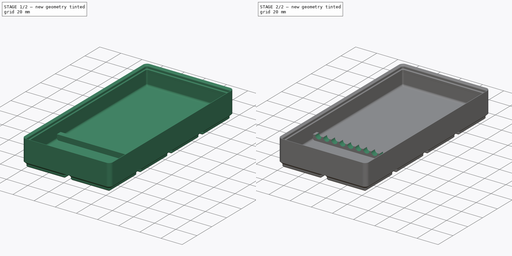
[diagram: build sequence overview — one tinted view per stage of 2, left to right]
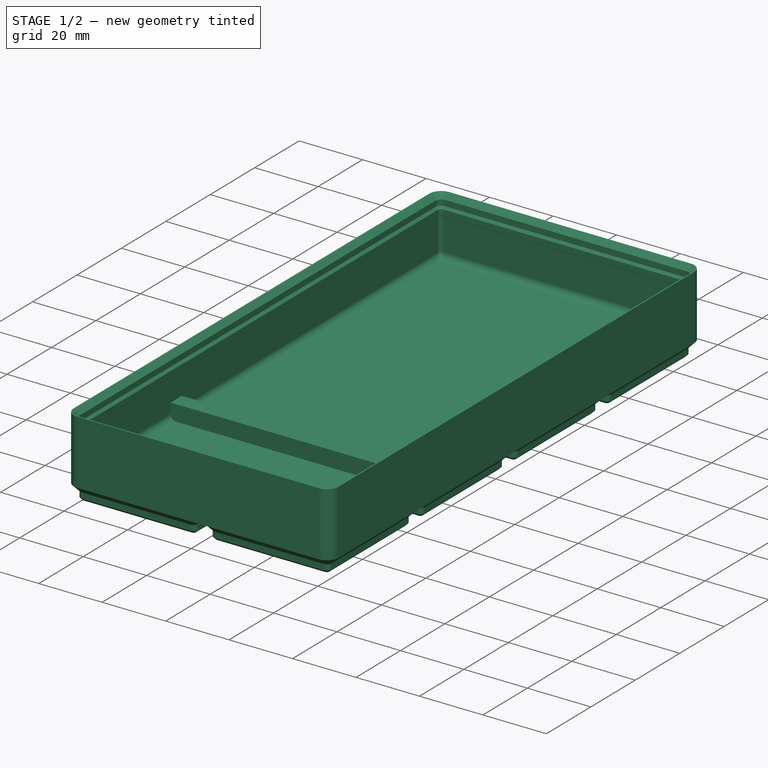
[diagram: stage 1 of 2 — iso view after this stage's code; geometry added in this stage tinted green]
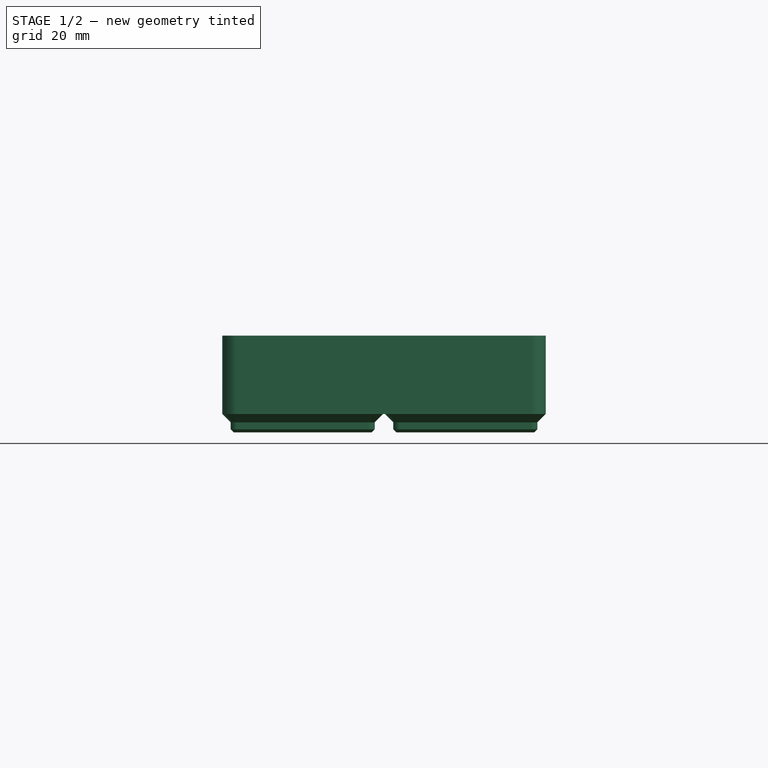
[diagram: stage 1 of 2 — front view after this stage's code; geometry added in this stage tinted green]
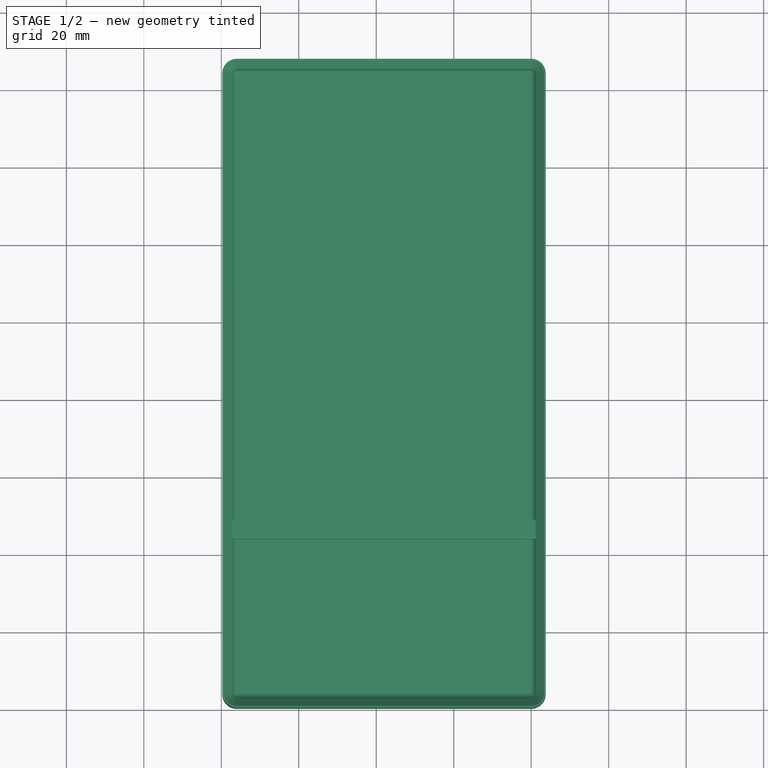
[diagram: stage 1 of 2 — top view after this stage's code; geometry added in this stage tinted green]
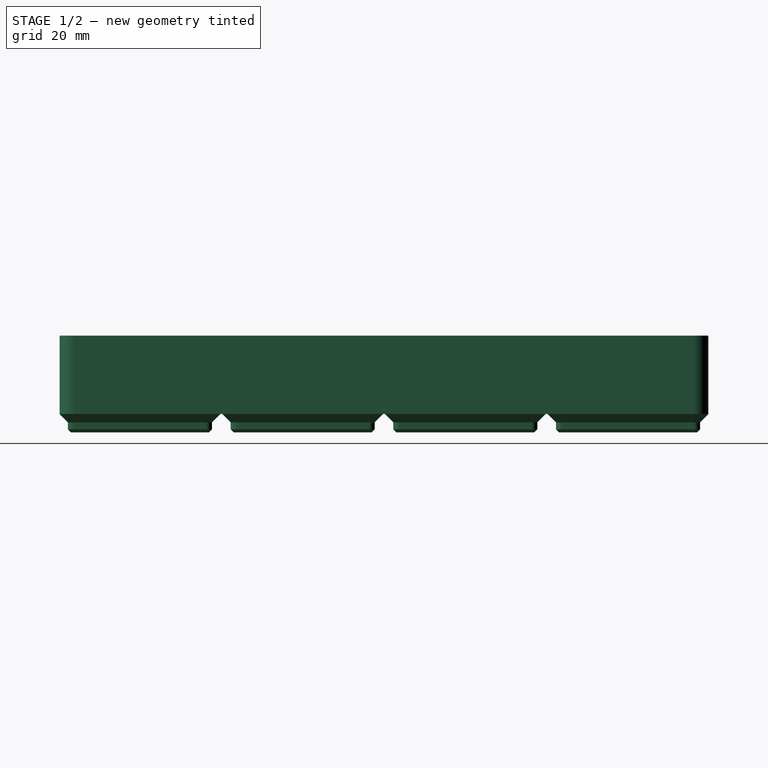
[diagram: stage 1 of 2 — right view after this stage's code; geometry added in this stage tinted green]
FCSTD DOCUMENT  (FreeCAD 1.0R39319 (Git))
Label: Gridfinity_BrushBox_2x4x3
License: All rights reserved
LicenseURL: https://en.wikipedia.org/wiki/All_rights_reserved
objects: Sketcher::SketchObject×2, PartDesign::FeaturePython×1, PartDesign::Pad×1, PartDesign::Pocket×1, PartDesign::LinearPattern×1, PartDesign::Body×1
note: 15 computed .brp shape members not serialized (recipe doc carries the construction recipe); baked Part::Feature solids carry a one-line shape summary decoded from their .brp

FEATURE [PartDesign::FeaturePython] SimpleStorageBin  # WARN: FeaturePython — macro-defined, semantics opaque (R4)
  BaseProfileBottomChamfer = 0.8
  BaseProfileHeight = 4.75
  BaseProfileTopChamfer = 2.15
  BaseProfileVerticalSection = 1.8
  Baseplate = false
  BinBottomRadius = 0.8
  BinOuterRadius = 3.75
  BinVerticalRadius = 1.6
  Clearance = 0.25
  CustomHeight = 42
  DividerThickness = 1.2
  GenerationLocation = 0
  HeightUnitValue = 7
  HeightUnits = 3
  InsideFilletRadius = 1.85
  LabelShelfAngle = 45
  LabelShelfLength = 42
  LabelShelfPlacement = 0
  LabelShelfStackingOffset = 0.4
  LabelShelfStyle = 0
  LabelShelfVerticalThickness = 1.2
  LabelShelfWidth = 12
  MagnetHoleDepth = 2.4
  MagnetHoleDiameter = 6.2
  MagnetHoleDistanceFromEdge = 8
  MagnetHoles = true
  MagnetHolesShape = 0
  NonStandardHeight = false
  Scoop = false
  ScoopRadius = 21
  ScrewHoleDepth = 6
  ScrewHoleDiameter = 3
  ScrewHoles = false
  SequentialBridgingLayerHeight = 0.2
  StackingLip = true
  StackingLipBottomChamfer = 0.7
  StackingLipTopChamfer = 1.5
  StackingLipTopLedge = 0.4
  StackingLipVerticalSection = 1.8
  Suppressed = false
  TotalHeight = 21
  UsableHeight = 14
  WallThickness = 2.5
  version = 0.11.9
  xDividerHeight = 0
  xDividers = 0
  xGridSize = 42
  xGridUnits = 2
  xLocationOffset = 0
  xTotalWidth = 83.5
  yDividerHeight = 0
  yDividers = 0
  yGridSize = 42
  yGridUnits = 4
  yLocationOffset = 0
  yTotalWidth = 167.5
  expr: BaseProfileHeight = BaseProfileBottomChamfer + BaseProfileVerticalSection + BaseProfileTopChamfer
  expr: TotalHeight = NonStandardHeight == 1 ? CustomHeight : HeightUnits * HeightUnitValue
  expr: xTotalWidth = xGridUnits * xGridSize - (Baseplate == 1 ? 0 mm : 2 * Clearance)
  expr: yTotalWidth = yGridUnits * yGridSize - (Baseplate == 1 ? 0 mm : 2 * Clearance)
FEATURE [Sketcher::SketchObject] Sketch
  ArcFitTolerance = 1e-06
  AttachmentSupport = -> [SimpleStorageBin]
  ExternalGeometry = -> [SimpleStorageBin]
  FullyConstrained = true
  MakeInternals = false
  MapMode = 5
  Placement = pos=(0,0,-14) rot=(0,0,1;0rad)
  sketch-geometry (4):
    g0: LineSegment StartX=2.15 StartY=49 StartZ=0 EndX=2.15 EndY=44 EndZ=0
    g1: LineSegment StartX=2.15 StartY=44 StartZ=0 EndX=81.85 EndY=44 EndZ=0
    g2: LineSegment StartX=81.85 StartY=44 StartZ=0 EndX=81.85 EndY=49 EndZ=0
    g3: LineSegment StartX=81.85 StartY=49 StartZ=0 EndX=2.15 EndY=49 EndZ=0
  constraints (12):
    c: Coincident(g0,g1)
    c: Coincident(g1,g2)
    c: Coincident(g2,g3)
    c: Coincident(g3,g0)
    c: Vertical(g0)
    c: Vertical(g2)
    c: Horizontal(g1)
    c: Horizontal(g3)
    c: PointOnObject(g0,g-4)
    c: PointOnObject(g2,g-3)
    c: DistanceY(g0,g0) = 5
    c: DistanceY(g-4,g0) = 40
FEATURE [PartDesign::Pad] Pad
  BaseFeature = -> SimpleStorageBin
  Direction = (0,0,1)
  Length = 5
  Length2 = 10
  Profile = -> Sketch
  ReferenceAxis = -> Sketch [N_Axis]
  Refine = true
  Suppressed = false
  Type = 0
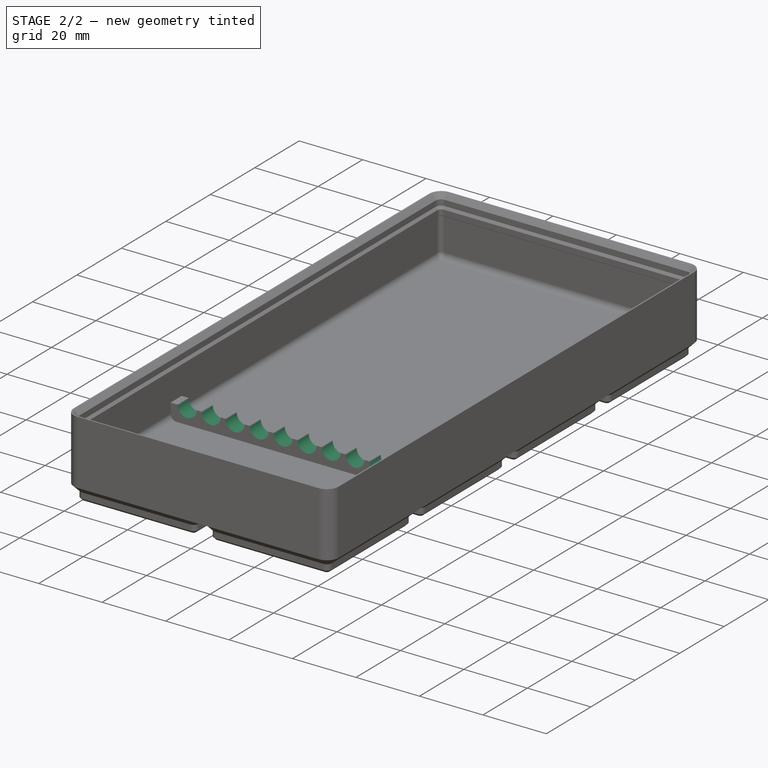
[diagram: stage 2 of 2 — iso view after this stage's code; geometry added in this stage tinted green]
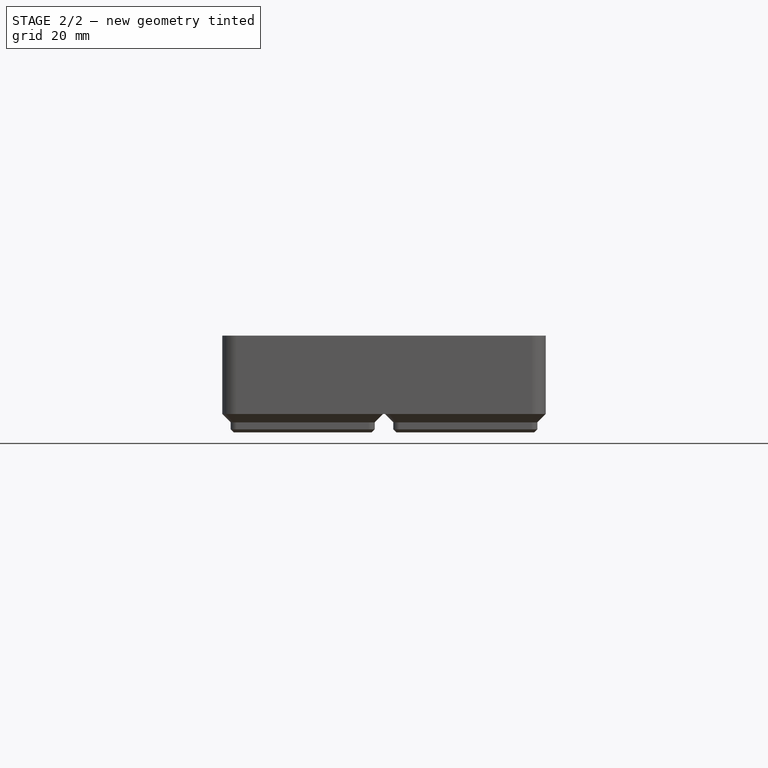
[diagram: stage 2 of 2 — front view after this stage's code; geometry added in this stage tinted green]
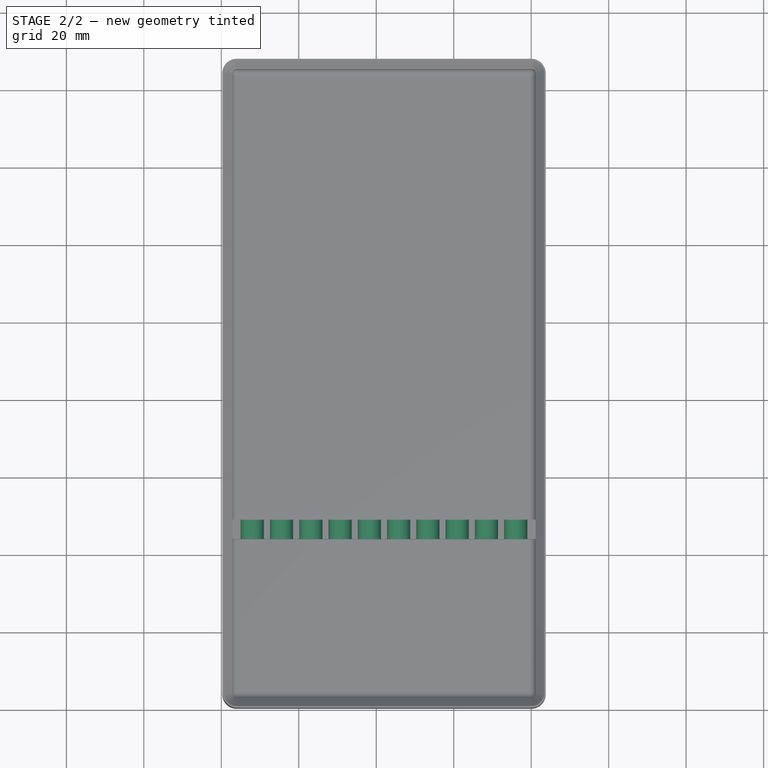
[diagram: stage 2 of 2 — top view after this stage's code; geometry added in this stage tinted green]
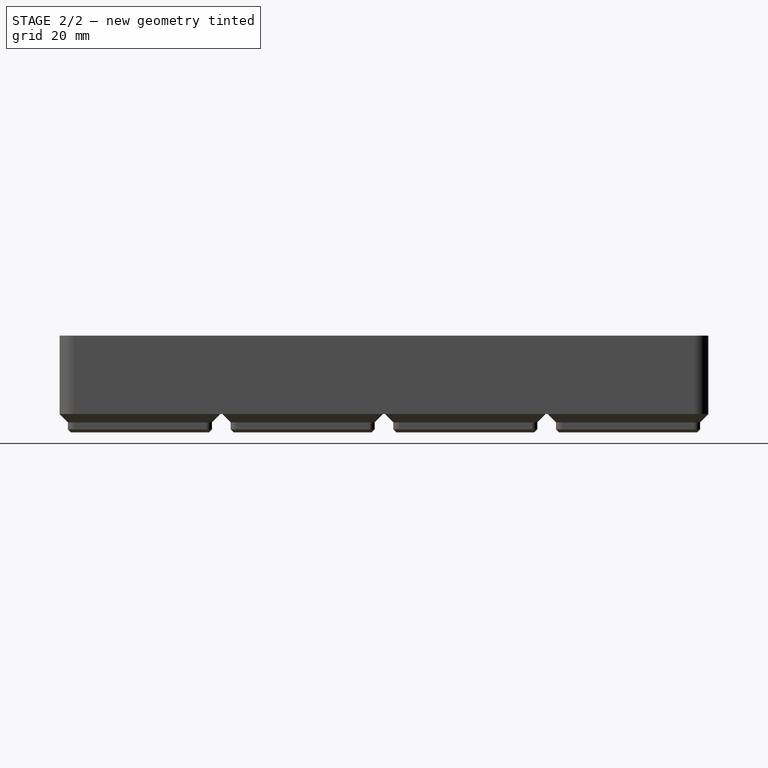
[diagram: stage 2 of 2 — right view after this stage's code; geometry added in this stage tinted green]
FEATURE [Sketcher::SketchObject] Sketch001
  ArcFitTolerance = 1e-06
  AttachmentSupport = -> [Pad]
  ExternalGeometry = -> [Pad]
  FullyConstrained = true
  MakeInternals = false
  MapMode = 5
  Placement = pos=(0,44,0) rot=(1,0,0;1.5708rad)
  sketch-geometry (1):
    g0: Circle CenterX=8 CenterY=-9 CenterZ=0 NormalX=0 NormalY=0 NormalZ=1 AngleXU=0 Radius=3
  constraints (4):
    c: PointOnObject(g0,g-3)
    c: Diameter(g0) = 6
    c: DistanceX(g-3,g-3) = 78.5
    c: DistanceX(g-3,g0) = 5.25
FEATURE [PartDesign::Pocket] Pocket
  BaseFeature = -> Pad
  Direction = (0,1,-2e-16)
  Length = 5
  Length2 = 5
  Profile = -> Sketch001 [Edge1]
  ReferenceAxis = -> Sketch001 [N_Axis]
  Refine = true
  Suppressed = false
  Type = 2
FEATURE [PartDesign::LinearPattern] LinearPattern
  BaseFeature = -> Pocket
  Direction = -> X_Axis
  Length = 68
  Mode = 0
  Occurrences = 10
  Offset = 7.55556
  Originals = -> [Pocket]
  Refine = true
  Suppressed = false
  TransformMode = 0
FEATURE [PartDesign::Body] Body  label="Körper"
  AllowCompound = false
  Group = -> [SimpleStorageBin,Sketch,Pad,Sketch001,Pocket,LinearPattern]
  Origin = -> Origin
  Tip = -> LinearPattern
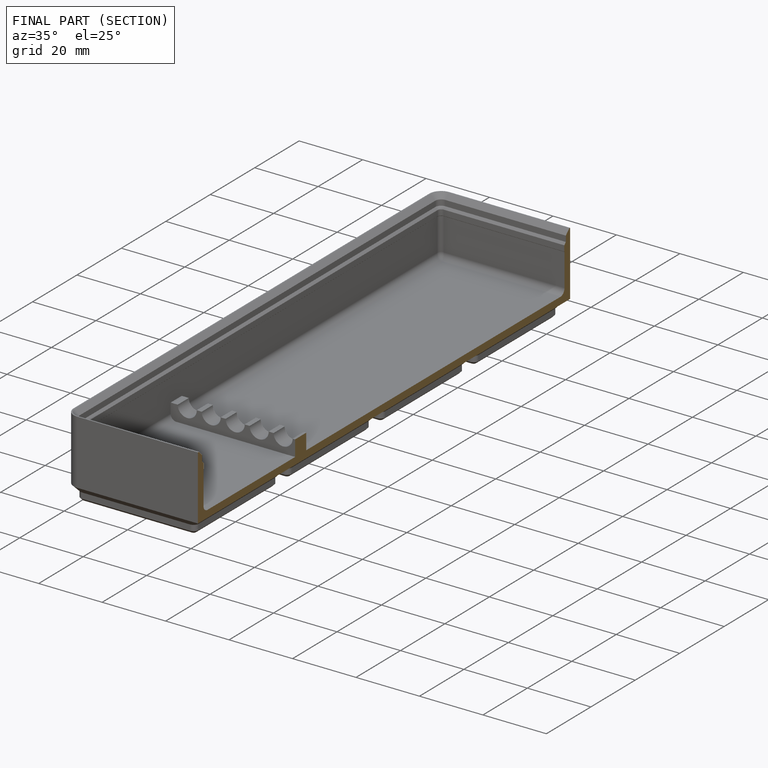
[diagram: finished part — half-section view (interior)]
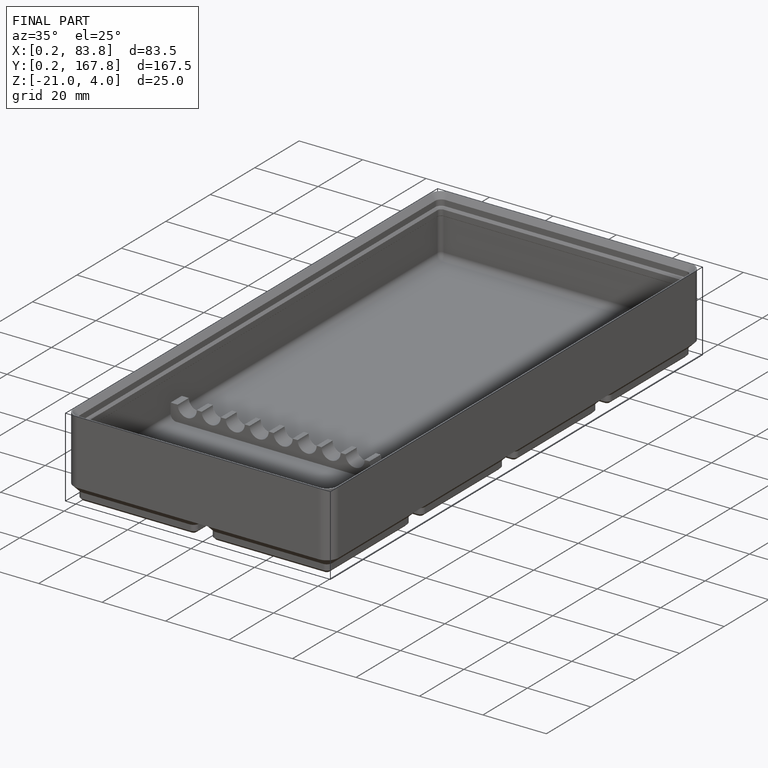
[diagram: finished part — iso view with bounding-box wireframe]
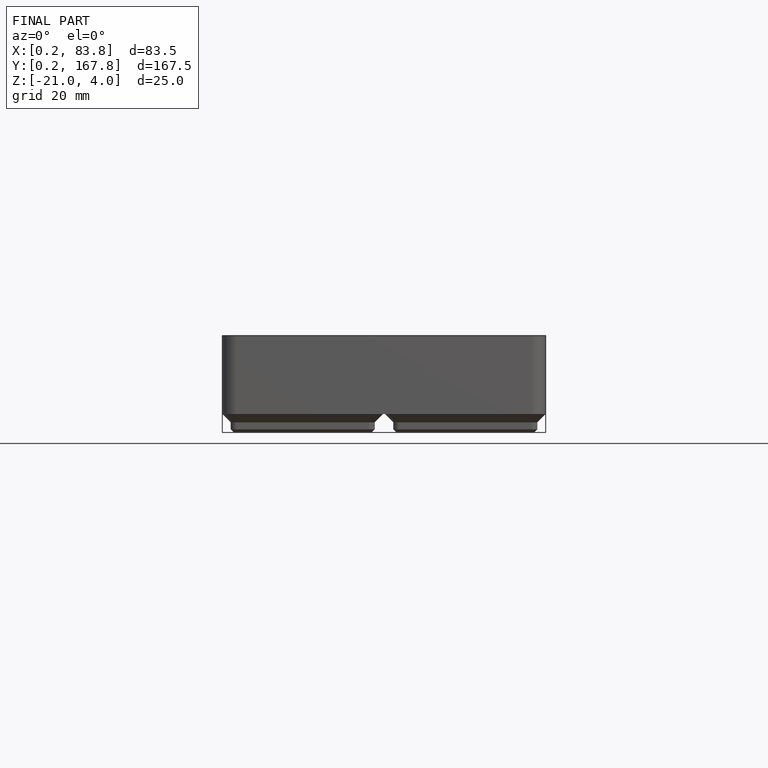
[diagram: finished part — front view with bounding-box wireframe]
